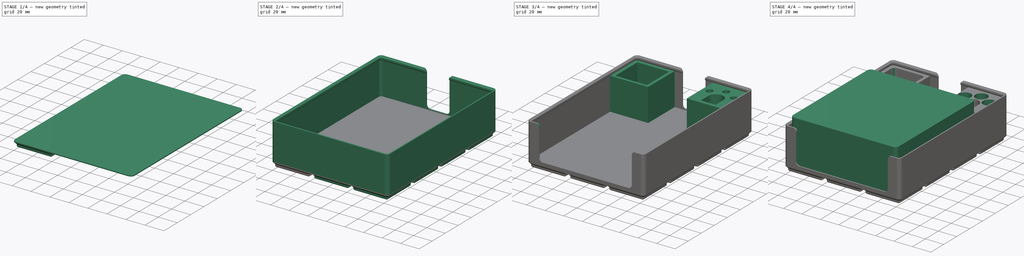
[diagram: build sequence overview — one tinted view per stage of 4, left to right]
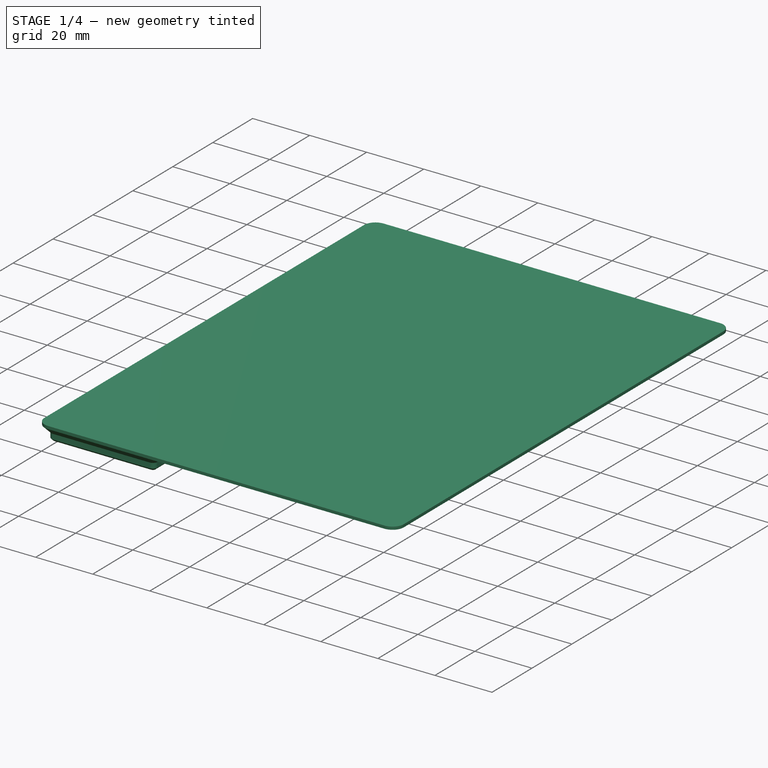
[diagram: stage 1 of 4 — iso view after this stage's code; geometry added in this stage tinted green]
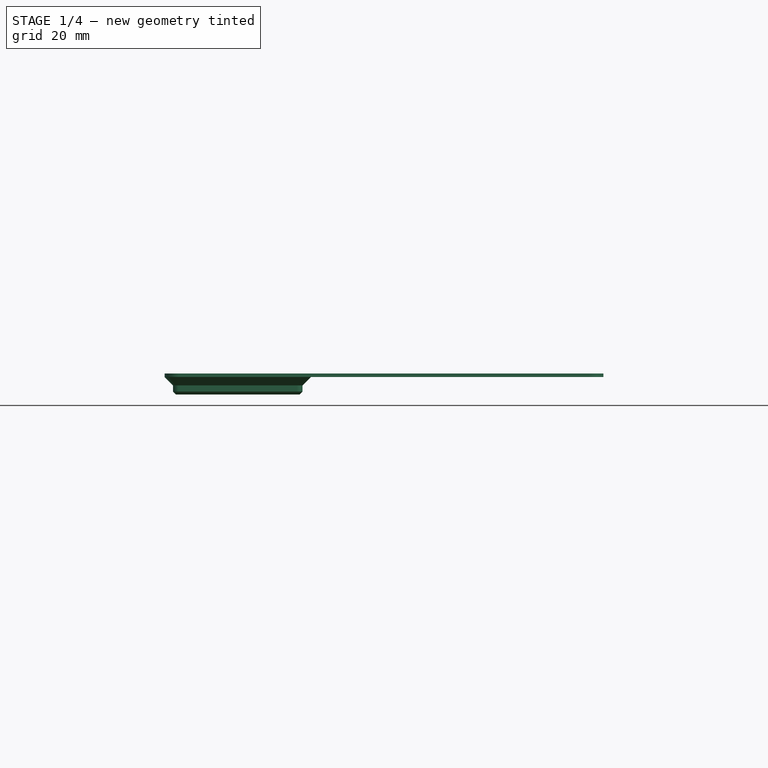
[diagram: stage 1 of 4 — front view after this stage's code; geometry added in this stage tinted green]
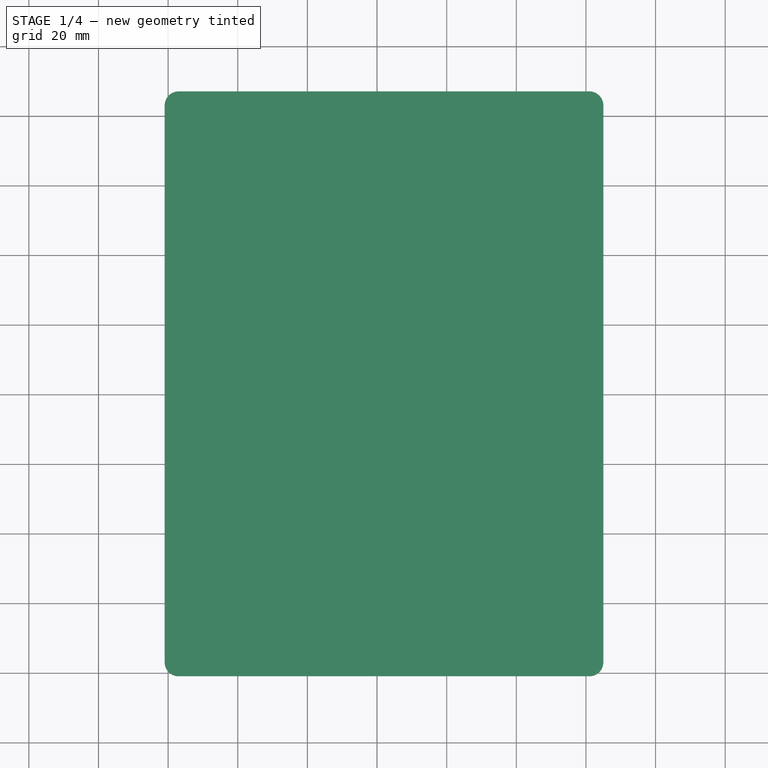
[diagram: stage 1 of 4 — top view after this stage's code; geometry added in this stage tinted green]
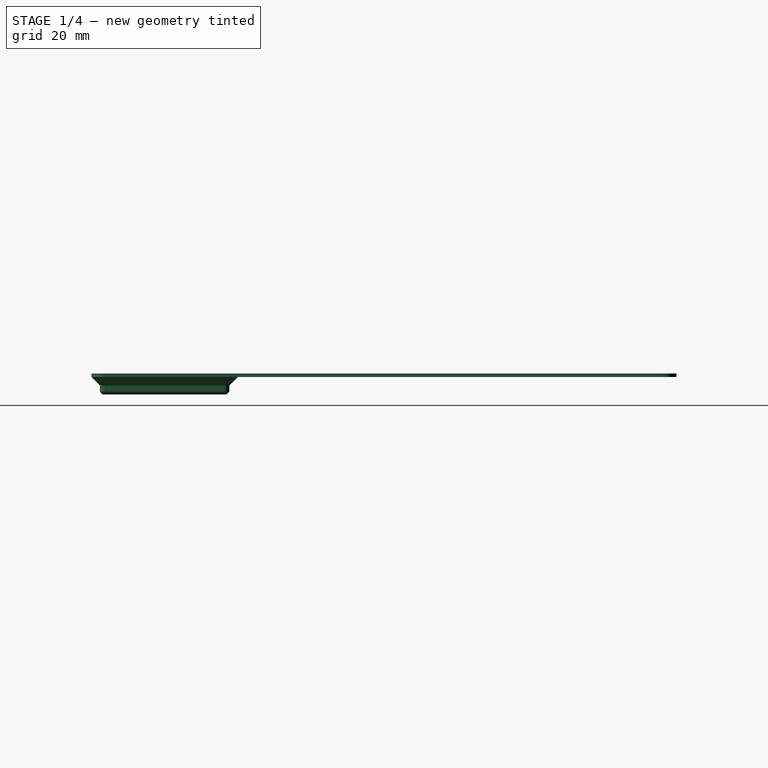
[diagram: stage 1 of 4 — right view after this stage's code; geometry added in this stage tinted green]
FCSTD DOCUMENT  (FreeCAD 0.19R24267 +148 (Git))
Label: Gridfinity Pine Power Base
License: All rights reserved
LicenseURL: http://en.wikipedia.org/wiki/All_rights_reserved
objects: Sketcher::SketchObject×12, PartDesign::Pocket×5, PartDesign::Pad×4, PartDesign::LinearPattern×2, PartDesign::Body×2, PartDesign::Fillet×2, Spreadsheet::Sheet×1, PartDesign::SubtractivePipe×1, PartDesign::MultiTransform×1, PartDesign::AdditivePipe×1, App::Part×1
note: 43 computed .brp shape members not serialized (recipe doc carries the construction recipe); baked Part::Feature solids carry a one-line shape summary decoded from their .brp

FEATURE [Spreadsheet::Sheet] Spreadsheet001  label="Params"
  cells = A1=slotsWide; B1(slotsWide)=3; D1=pinePowerWidth; E1(pinePowerWidth)==115mm; G1=Unit Width; H1(unitWidth)==slotsWide * slotDimension; A2=slotsHigh; B2(slotsHigh)=6; D2=pinePowerDepth; E2(pinePowerDepth)==123mm; G2=margin; H2==unitWidth - pinePowerWidth; A3=SlotsDeep; B3(SlotsDeep)=4; D3=pinePowerCornerRadius; E3(pinePowerCornerRadius)==4mm; A4=slotHeightDimension; B4(slotHeightDimension)==7mm; D4=pinePowerHeight; E4(pinePowerHeight)==48mm; A5=slotDimension; B5(slotDimension)==42mm; D5=powerCutout; E5(powerCutout)==25mm; A6=nestingDepth; B6(nestingDepth)==5mm; D6=pinePower_frontCutout; E6(pinePower_frontCutout_width)==100mm; A7=nestingRimWidth; B7(nestingRimWidth)==2.4mm; D7=pinePower_frontCutout_height; E7(pinePower_frontCutout_height)==36.7mm; A8=nestingClearance; B8(nestingClearance)==0.25mm; A9=cornerFillet; B9(cornerFillet)==4mm; A10=wallThickkness; B10(wallThickkness)==1.2mm; A11=nestingBottomFillet; B11(nestingBottomFillet)==0.8mm; A12=compartments; B12(compartments)=4; A13=compartmentOffset; B13(compartmentOffset)==(slotsWide * slotDimension - wallThickkness) / compartments; A14=compartmentInnerWidth; B14(compartmentInnerWidth)==compartmentOffset - wallThickkness; A15=compartmentSideFillet; B15(compartmentSideFillet)==1mm; A16=compartmentFrontFillet; B16(compartmentFrontFillet)==5mm; A17=topEdgeFillet; B17(topEdgeFillet)==0.6mm; A18=nestingFilletAngle; B18(nestingFilletAngle)=45; A19=nestingInnerDepth; B19(nestingInnerDepth)==1.8mm; A20=magnetRadius; B20(magnetRadius)==3mm; A21=magnetDepth; B21(magnetDepth)==2mm; A22=screwDiameter; B22(screwDiameter)==3mm; A23=deckHeight; B23(deckHeight)==1mm
FEATURE [Sketcher::SketchObject] Sketch007  label="Single Unit Main Body Outline"
  FullyConstrained = true
  MapMode = 5
  Support = -> [XY_Plane]
  expr: Constraints[28] = <<Params>>.cornerFillet
  expr: Constraints[32] = <<Params>>.slotDimension
  expr: Constraints[4] = <<Params>>.slotDimension
  sketch-geometry (15):
    g0: LineSegment StartX=-17 StartY=21 StartZ=0 EndX=17 EndY=21 EndZ=0
    g1: LineSegment StartX=21 StartY=17 StartZ=0 EndX=21 EndY=-17 EndZ=0
    g2: LineSegment StartX=17 StartY=-21 StartZ=0 EndX=-17 EndY=-21 EndZ=0
    g3: LineSegment StartX=-21 StartY=-17 StartZ=0 EndX=-21 EndY=17 EndZ=0
    g4: LineSegment StartX=-21 StartY=21 StartZ=0 EndX=21 EndY=-21 EndZ=0
    g5: LineSegment StartX=-21 StartY=-21 StartZ=0 EndX=21 EndY=21 EndZ=0
    g6: GeomPoint X=0 Y=0 Z=0
    g7: ArcOfCircle CenterX=-17 CenterY=17 CenterZ=0 NormalX=0 NormalY=0 NormalZ=1 AngleXU=0 Radius=4 StartAngle=1.5708 EndAngle=3.14159
    g8: GeomPoint X=-21 Y=21 Z=0
    g9: ArcOfCircle CenterX=17 CenterY=17 CenterZ=0 NormalX=0 NormalY=0 NormalZ=1 AngleXU=0 Radius=4 StartAngle=0 EndAngle=1.5708
    g10: GeomPoint X=21 Y=21 Z=0
    g11: ArcOfCircle CenterX=17 CenterY=-17 CenterZ=0 NormalX=0 NormalY=0 NormalZ=1 AngleXU=0 Radius=4 StartAngle=4.71239 EndAngle=6.28319
    g12: GeomPoint X=21 Y=-21 Z=0
    g13: ArcOfCircle CenterX=-17 CenterY=-17 CenterZ=0 NormalX=0 NormalY=0 NormalZ=1 AngleXU=0 Radius=4 StartAngle=3.14159 EndAngle=4.71239
    g14: GeomPoint X=-21 Y=-21 Z=0
  constraints (33):
    c: Horizontal(g0)
    c: Horizontal(g2)
    c: Vertical(g1)
    c: Vertical(g3)
    c: DistanceX(g8,g10) = 42
    c: Coincident(g4,g8)
    c: Coincident(g4,g12)
    c: PointOnObject(g6,g5)
    c: PointOnObject(g6,g4)
    c: Coincident(g5,g14)
    c: Coincident(g5,g10)
    c: Coincident(g6,g-1)
    c: PointOnObject(g8,g3)
    c: PointOnObject(g8,g0)
    c: Tangent(g3,g7) = 1.5708
    c: Tangent(g0,g7) = 1.5708
    c: PointOnObject(g10,g0)
    c: PointOnObject(g10,g1)
    c: Tangent(g0,g9) = 1.5708
    c: Tangent(g1,g9) = 1.5708
    c: PointOnObject(g12,g1)
    c: PointOnObject(g12,g2)
    c: Tangent(g1,g11) = 1.5708
    c: Tangent(g2,g11) = 1.5708
    c: PointOnObject(g14,g2)
    c: PointOnObject(g14,g3)
    c: Tangent(g2,g13) = 1.5708
    c: Tangent(g3,g13) = 1.5708
    c: Radius(g13) = 4
    c: Equal(g13,g7)
    c: Equal(g7,g9)
    c: Equal(g9,g11)
    c: DistanceY(g5,g4) = 42
FEATURE [Sketcher::SketchObject] Sketch009  label="Base Profile"
  FullyConstrained = true
  MapMode = 5
  Placement = pos=(0,0,0) rot=(1,0,0;1.5708rad)
  Support = -> [XZ_Plane]
  expr: Constraints[9] = <<Params>>.nestingDepth
  expr: Constraints[17] = <<Params>>.nestingFilletAngle
  expr: Constraints[10] = <<Params>>.nestingFilletAngle
  expr: Constraints[13] = <<Params>>.slotDimension / 2
  expr: Constraints[18] = <<Params>>.nestingInnerDepth
  expr: Constraints[19] = <<Params>>.nestingRimWidth
  sketch-geometry (11):
    g0: LineSegment StartX=-21 StartY=0 StartZ=0 EndX=-21 EndY=5 EndZ=0
    g1: LineSegment StartX=-21 StartY=5 StartZ=0 EndX=-18.6 EndY=2.6 EndZ=0
    g2: LineSegment StartX=-18.6 StartY=2.6 StartZ=0 EndX=-18.6 EndY=0.8 EndZ=0
    g3: LineSegment StartX=-18.6 StartY=0.8 StartZ=0 EndX=-17.8 EndY=0 EndZ=0
    g4: LineSegment StartX=-17.8 StartY=0 StartZ=0 EndX=-21 EndY=0 EndZ=0
    g5: LineSegment StartX=-21 StartY=0 StartZ=0 EndX=0 EndY=0 EndZ=0
    g6: LineSegment StartX=-18.6 StartY=0.8 StartZ=0 EndX=-18.6 EndY=0 EndZ=0
    g7: LineSegment StartX=-21 StartY=5 StartZ=0 EndX=-26 EndY=5 EndZ=0
    g8: LineSegment StartX=-26 StartY=5 StartZ=0 EndX=-26 EndY=0 EndZ=0
    g9: LineSegment StartX=-26 StartY=0 StartZ=0 EndX=-21 EndY=0 EndZ=0
    g10: LineSegment StartX=-21 StartY=0 StartZ=0 EndX=-21 EndY=5 EndZ=0
  constraints (31):
    c: PointOnObject(g0,g-1)
    c: Vertical(g0)
    c: Coincident(g0,g1)
    c: Coincident(g1,g2)
    c: Vertical(g2)
    c: Coincident(g2,g3)
    c: Coincident(g3,g4)
    c: Coincident(g4,g0)
    c: Horizontal(g4)
    c: DistanceY(g0,g0) = 5
    c: Angle(g0,g1) = 0.785398
    c: Coincident(g5,g0)
    c: Coincident(g5,g-1)
    c: DistanceX(g5,g5) = 21
    c: Coincident(g6,g2)
    c: PointOnObject(g6,g4)
    c: Vertical(g6)
    c: Angle(g6,g3) = 0.785398
    c: DistanceY(g2,g2) = 1.8
    c: DistanceX(g0,g6) = 2.4
    c: Coincident(g7,g8)
    c: Coincident(g8,g9)
    c: Coincident(g9,g10)
    c: Coincident(g10,g7)
    c: Horizontal(g7)
    c: Horizontal(g9)
    c: Vertical(g8)
    c: Vertical(g10)
    c: Coincident(g7,g0)
    c: PointOnObject(g8,g-1)
    c: Equal(g8,g9)
FEATURE [Sketcher::SketchObject] Sketch008  label="Single Unit Base Step One"
  FullyConstrained = true
  MapMode = 5
  Support = -> [XY_Plane]
  expr: Constraints[32] = <<Params>>.slotDimension - 2 * <<Params>>.nestingRimWidth
  expr: Constraints[31] = <<Params>>.cornerFillet
  expr: Constraints[11] = <<Params>>.slotDimension - 2 * <<Params>>.nestingRimWidth
  sketch-geometry (15):
    g0: LineSegment StartX=-14.6 StartY=18.6 StartZ=0 EndX=14.6 EndY=18.6 EndZ=0
    g1: LineSegment StartX=18.6 StartY=14.6 StartZ=0 EndX=18.6 EndY=-14.6 EndZ=0
    g2: LineSegment StartX=14.6 StartY=-18.6 StartZ=0 EndX=-14.6 EndY=-18.6 EndZ=0
    g3: LineSegment StartX=-18.6 StartY=-14.6 StartZ=0 EndX=-18.6 EndY=14.6 EndZ=0
    g4: LineSegment StartX=-18.6 StartY=18.6 StartZ=0 EndX=18.6 EndY=-18.6 EndZ=0
    g5: LineSegment StartX=18.6 StartY=18.6 StartZ=0 EndX=-18.6 EndY=-18.6 EndZ=0
    g6: GeomPoint X=0 Y=0 Z=0
    g7: ArcOfCircle CenterX=-14.6 CenterY=14.6 CenterZ=0 NormalX=0 NormalY=0 NormalZ=1 AngleXU=0 Radius=4 StartAngle=1.5708 EndAngle=3.14159
    g8: GeomPoint X=-18.6 Y=18.6 Z=0
    g9: ArcOfCircle CenterX=14.6 CenterY=14.6 CenterZ=0 NormalX=0 NormalY=0 NormalZ=1 AngleXU=0 Radius=4 StartAngle=0 EndAngle=1.5708
    g10: GeomPoint X=18.6 Y=18.6 Z=0
    g11: ArcOfCircle CenterX=14.6 CenterY=-14.6 CenterZ=0 NormalX=0 NormalY=0 NormalZ=1 AngleXU=0 Radius=4 StartAngle=4.71239 EndAngle=6.28319
    g12: GeomPoint X=18.6 Y=-18.6 Z=0
    g13: ArcOfCircle CenterX=-14.6 CenterY=-14.6 CenterZ=0 NormalX=0 NormalY=0 NormalZ=1 AngleXU=0 Radius=4 StartAngle=3.14159 EndAngle=4.71239
    g14: GeomPoint X=-18.6 Y=-18.6 Z=0
  constraints (33):
    c: Horizontal(g0)
    c: Horizontal(g2)
    c: Vertical(g1)
    c: Vertical(g3)
    c: Coincident(g4,g8)
    c: Coincident(g4,g12)
    c: Coincident(g5,g10)
    c: Coincident(g5,g14)
    c: PointOnObject(g6,g5)
    c: PointOnObject(g6,g4)
    c: Coincident(g6,g-1)
    c: DistanceX(g8,g10) = 37.2
    c: PointOnObject(g8,g3)
    c: PointOnObject(g8,g0)
    c: Tangent(g3,g7) = 1.5708
    c: Tangent(g0,g7) = 1.5708
    c: PointOnObject(g10,g0)
    c: PointOnObject(g10,g1)
    c: Tangent(g0,g9) = 1.5708
    c: Tangent(g1,g9) = 1.5708
    c: PointOnObject(g12,g1)
    c: PointOnObject(g12,g2)
    c: Tangent(g1,g11) = 1.5708
    c: Tangent(g2,g11) = 1.5708
    c: PointOnObject(g14,g2)
    c: PointOnObject(g14,g3)
    c: Tangent(g2,g13) = 1.5708
    c: Tangent(g3,g13) = 1.5708
    c: Equal(g7,g9)
    c: Equal(g9,g11)
    c: Equal(g11,g13)
    c: Radius(g7) = 4
    c: DistanceY(g5,g4) = 37.2
FEATURE [PartDesign::Pad] Pad
  Direction = (1,1,1)
  Length = 5
  Length2 = 100
  Profile = -> Sketch007
  Type = 0
  expr: Length = <<Params>>.slotHeightDimension - 2mm
FEATURE [Sketcher::SketchObject] Sketch  label="UpperBodyPlate_Sketch"
  AttachmentOffset = pos=(0,0,5) rot=(0,0,1;0rad)
  FullyConstrained = true
  MapMode = 5
  Placement = pos=(0,0,5) rot=(0,0,1;0rad)
  Support = -> [XY_Plane]
  expr: Constraints[4] = <<Params>>.slotDimension / 2
  expr: Constraints[5] = <<Params>>.slotDimension / 2
  expr: Constraints[6] = <<Params>>.slotDimension * <<Params>>.SlotsDeep
  expr: Constraints[7] = <<Params>>.slotDimension * <<Params>>.slotsWide
  expr: .AttachmentOffset.Base.z = <<Params>>.nestingDepth
  expr: Constraints[12] = <<Params>>.cornerFillet
  sketch-geometry (12):
    g0: LineSegment StartX=-17 StartY=147 StartZ=0 EndX=101 EndY=147 EndZ=0
    g1: LineSegment StartX=105 StartY=143 StartZ=0 EndX=105 EndY=-17 EndZ=0
    g2: LineSegment StartX=101 StartY=-21 StartZ=0 EndX=-17 EndY=-21 EndZ=0
    g3: LineSegment StartX=-21 StartY=-17 StartZ=0 EndX=-21 EndY=143 EndZ=0
    g4: ArcOfCircle CenterX=-17 CenterY=-17 CenterZ=0 NormalX=0 NormalY=0 NormalZ=1 AngleXU=0 Radius=4 StartAngle=3.14159 EndAngle=4.71239
    g5: GeomPoint X=-21 Y=-21 Z=0
    g6: ArcOfCircle CenterX=-17 CenterY=143 CenterZ=0 NormalX=0 NormalY=0 NormalZ=1 AngleXU=0 Radius=4 StartAngle=1.5708 EndAngle=3.14159
    g7: GeomPoint X=-21 Y=147 Z=0
    g8: ArcOfCircle CenterX=101 CenterY=143 CenterZ=0 NormalX=0 NormalY=0 NormalZ=1 AngleXU=0 Radius=4 StartAngle=-4e-14 EndAngle=1.5708
    g9: GeomPoint X=105 Y=147 Z=0
    g10: ArcOfCircle CenterX=101 CenterY=-17 CenterZ=0 NormalX=0 NormalY=0 NormalZ=1 AngleXU=0 Radius=4 StartAngle=4.71239 EndAngle=6.28319
    g11: GeomPoint X=105 Y=-21 Z=0
  constraints (28):
    c: Horizontal(g0)
    c: Horizontal(g2)
    c: Vertical(g1)
    c: Vertical(g3)
    c: DistanceX(g5,g-1) = 21
    c: DistanceY(g5,g-1) = 21
    c: DistanceY(g5,g7) = 168
    c: DistanceX(g5,g11) = 126
    c: PointOnObject(g5,g2)
    c: PointOnObject(g5,g3)
    c: Tangent(g2,g4) = 1.5708
    c: Tangent(g3,g4) = 1.5708
    c: Radius(g4) = 4
    c: PointOnObject(g7,g0)
    c: PointOnObject(g7,g3)
    c: Tangent(g0,g6) = 1.5708
    c: Tangent(g3,g6) = 1.5708
    c: PointOnObject(g9,g0)
    c: PointOnObject(g9,g1)
    c: Tangent(g0,g8) = 1.5708
    c: Tangent(g1,g8) = 1.5708
    c: PointOnObject(g11,g1)
    c: PointOnObject(g11,g2)
    c: Tangent(g1,g10) = 1.5708
    c: Tangent(g2,g10) = 1.5708
    c: Equal(g4,g6)
    c: Equal(g6,g8)
    c: Equal(g8,g10)
FEATURE [PartDesign::Pad] Pad001  label="UpperBodyPlate"
  BaseFeature = -> Pad
  Direction = (1,1,1)
  Length = 1
  Length2 = 100
  Profile = -> Sketch
  Type = 0
  expr: Length = <<Params>>.deckHeight
FEATURE [PartDesign::SubtractivePipe] SubtractivePipe
  AuxilleryCurvelinear = true
  AuxillerySpineTangent = false
  BaseFeature = -> Pad001
  Binormal = (0,0,0)
  Mode = 0
  Profile = -> Sketch009
  Spine = -> Sketch007
  SpineTangent = false
  Transformation = 0
  Transition = 0
FEATURE [PartDesign::LinearPattern] LinearPattern
  Direction = -> X_Axis
  Length = 84
  Occurrences = 3
  expr: Length = <<Params>>.slotDimension * (<<Params>>.slotsWide - 1)
  expr: Occurrences = <<Params>>.slotsWide
FEATURE [PartDesign::LinearPattern] LinearPattern001
  Direction = -> Y_Axis
  Length = 126
  Occurrences = 4
  expr: Length = <<Params>>.slotDimension * (<<Params>>.SlotsDeep - 1)
  expr: Occurrences = <<Params>>.SlotsDeep
FEATURE [Sketcher::SketchObject] Sketch010
  FullyConstrained = true
  MapMode = 5
  Support = -> [XY_Plane]
  expr: Constraints[8] = <<Params>>.slotDimension / 2
  expr: Constraints[9] = <<Params>>.slotDimension / 2
  expr: Constraints[14] = <<Params>>.nestingRimWidth + <<Params>>.nestingBottomFillet + <<Params>>.magnetRadius / 2 + 3mm
  expr: Constraints[11] = <<Params>>.slotDimension
  expr: Constraints[12] = <<Params>>.magnetRadius
  expr: Constraints[13] = <<Params>>.nestingRimWidth + <<Params>>.nestingBottomFillet + <<Params>>.magnetRadius / 2 + 3mm
  sketch-geometry (12):
    g0: LineSegment StartX=-21 StartY=21 StartZ=0 EndX=21 EndY=21 EndZ=0
    g1: LineSegment StartX=21 StartY=21 StartZ=0 EndX=21 EndY=-21 EndZ=0
    g2: LineSegment StartX=21 StartY=-21 StartZ=0 EndX=-21 EndY=-21 EndZ=0
    g3: LineSegment StartX=-21 StartY=-21 StartZ=0 EndX=-21 EndY=21 EndZ=0
    g4: Circle CenterX=-13.3 CenterY=13.3 CenterZ=0 NormalX=0 NormalY=0 NormalZ=1 AngleXU=0 Radius=3
    g5: Circle CenterX=13.3 CenterY=13.3 CenterZ=0 NormalX=0 NormalY=0 NormalZ=1 AngleXU=0 Radius=3
    g6: Circle CenterX=13.3 CenterY=-13.3 CenterZ=0 NormalX=0 NormalY=0 NormalZ=1 AngleXU=0 Radius=3
    g7: Circle CenterX=-13.3 CenterY=-13.3 CenterZ=0 NormalX=0 NormalY=0 NormalZ=1 AngleXU=0 Radius=3
    g8: LineSegment StartX=-21 StartY=21 StartZ=0 EndX=-13.3 EndY=13.3 EndZ=0
    g9: LineSegment StartX=13.3 StartY=13.3 StartZ=0 EndX=21 EndY=21 EndZ=0
    g10: LineSegment StartX=-13.3 StartY=-13.3 StartZ=0 EndX=-21 EndY=-21 EndZ=0
    g11: LineSegment StartX=13.3 StartY=-13.3 StartZ=0 EndX=21 EndY=-21 EndZ=0
  constraints (32):
    c: Coincident(g0,g1)
    c: Coincident(g1,g2)
    c: Coincident(g2,g3)
    c: Coincident(g3,g0)
    c: Horizontal(g0)
    c: Horizontal(g2)
    c: Vertical(g1)
    c: Vertical(g3)
    c: DistanceX(g2,g-1) = 21
    c: DistanceY(g2,g-1) = 21
    c: Equal(g0,g1)
    c: DistanceX(g0,g0) = 42
    c: Radius(g4) = 3
    c: DistanceX(g0,g4) = 7.7
    c: DistanceY(g4,g0) = 7.7
    c: Coincident(g8,g0)
    c: Coincident(g8,g4)
    c: Coincident(g9,g5)
    c: Coincident(g9,g0)
    c: Coincident(g10,g7)
    c: Coincident(g10,g2)
    c: Coincident(g11,g6)
    c: Coincident(g11,g1)
    c: Angle(g0,g9) = 0.785398
    c: Angle(g1,g11) = 0.785398
    c: Angle(g10,g3) = 0.785398
    c: Equal(g8,g9)
    c: Equal(g9,g11)
    c: Equal(g11,g10)
    c: Equal(g4,g5)
    c: Equal(g5,g6)
    c: Equal(g6,g7)
FEATURE [PartDesign::Pocket] Pocket
  BaseFeature = -> SubtractivePipe
  Length = 2
  Length2 = 100
  Profile = -> Sketch010
  Reversed = true
  Type = 0
  expr: Length = <<Params>>.magnetDepth
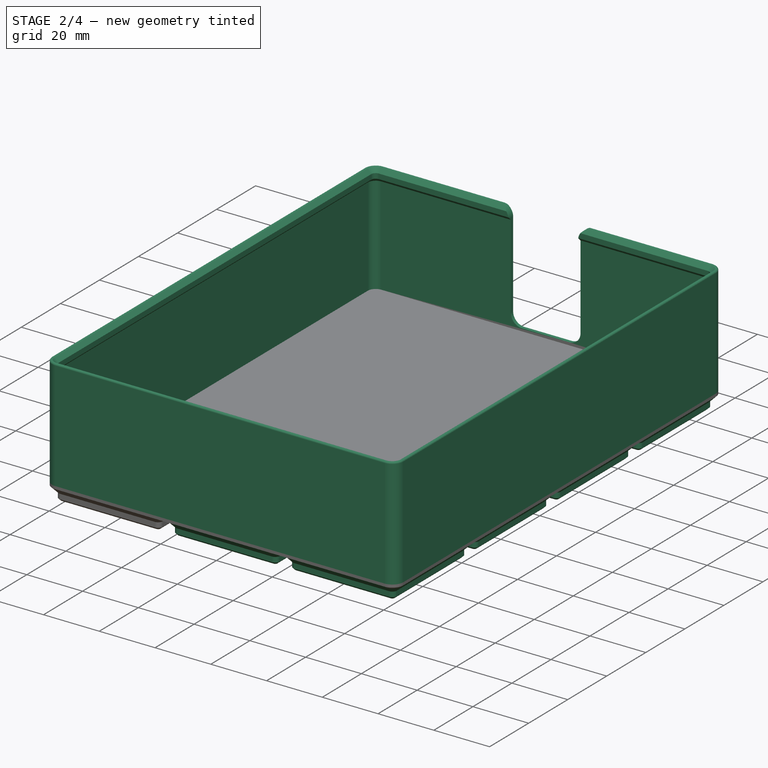
[diagram: stage 2 of 4 — iso view after this stage's code; geometry added in this stage tinted green]
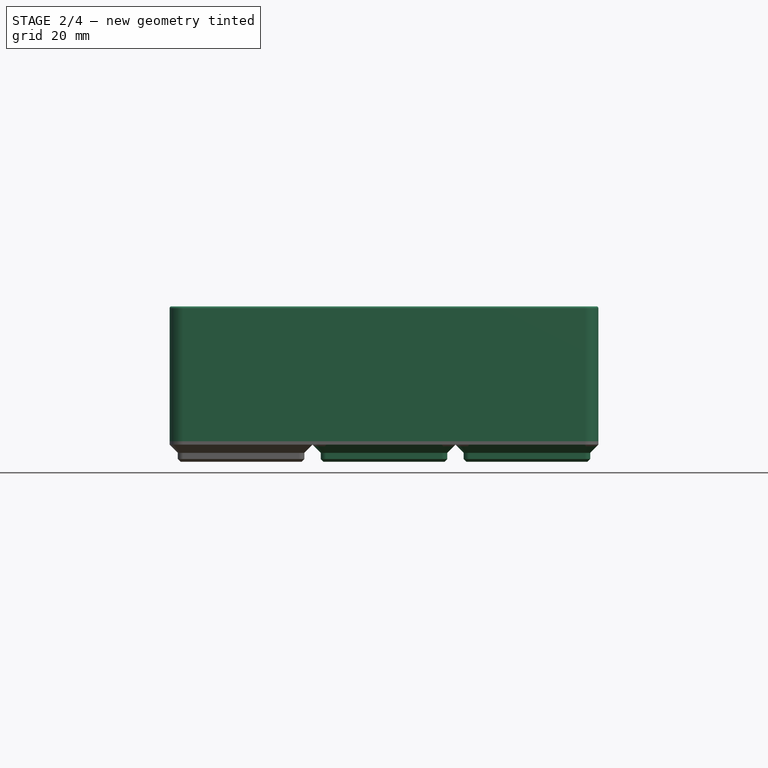
[diagram: stage 2 of 4 — front view after this stage's code; geometry added in this stage tinted green]
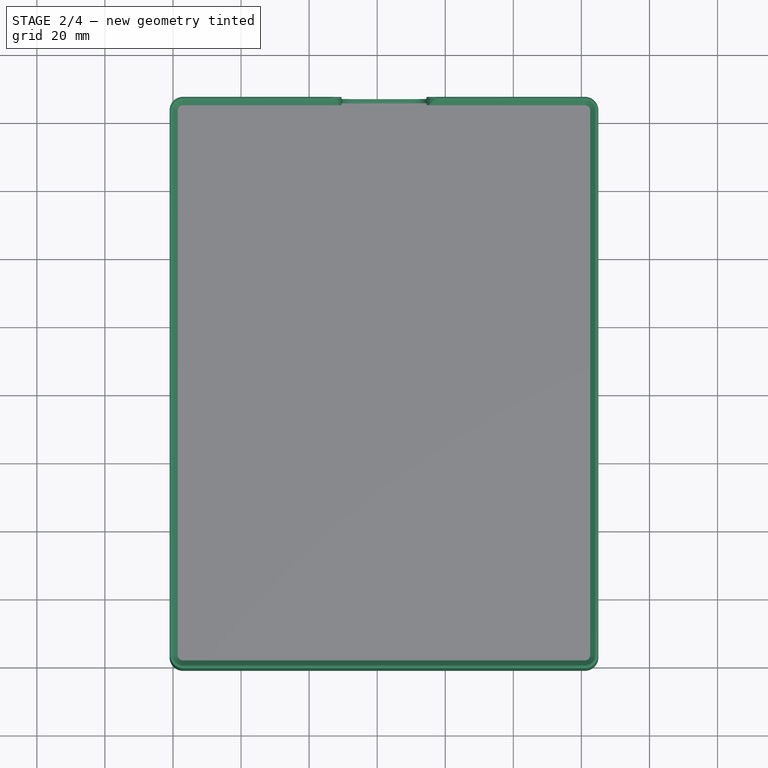
[diagram: stage 2 of 4 — top view after this stage's code; geometry added in this stage tinted green]
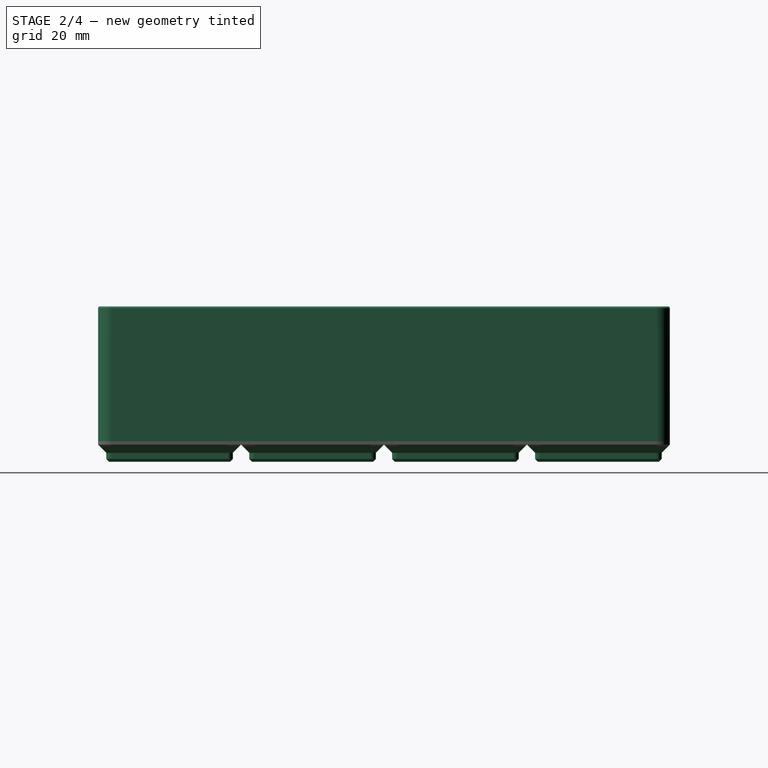
[diagram: stage 2 of 4 — right view after this stage's code; geometry added in this stage tinted green]
FEATURE [PartDesign::MultiTransform] MultiTransform
  BaseFeature = -> Pocket
  Originals = -> [Pad,SubtractivePipe,Pocket]
  Transformations = -> [LinearPattern,LinearPattern001]
FEATURE [PartDesign::Body] Body001  label="PinePower Body"
  Group = -> [Sketch016,Pad004]
  Origin = -> Origin004
  Tip = -> Pad004
FEATURE [Sketcher::SketchObject] Sketch017  label="Wall Profile"
  FullyConstrained = true
  MapMode = 5
  Placement = pos=(0,0,0) rot=(1,0,0;1.5708rad)
  Support = -> [XZ_Plane]
  expr: Constraints[10] = <<Params>>.wallThickkness
  expr: Constraints[11] = <<Params>>.nestingRimWidth
  expr: Constraints[12] = <<Params>>.nestingInnerDepth
  expr: Constraints[15] = <<Params>>.nestingDepth + <<Params>>.deckHeight
  expr: Constraints[20] = <<Params>>.topEdgeFillet
  expr: Constraints[13] = <<Params>>.slotsHigh * <<Params>>.slotHeightDimension - 1.5mm
  expr: Constraints[14] = <<Params>>.slotDimension / 2
  sketch-geometry (8):
    g0: LineSegment StartX=-21 StartY=45.0515 StartZ=0 EndX=-21 EndY=6 EndZ=0
    g1: LineSegment StartX=-19.9757 StartY=45.4757 StartZ=0 EndX=-18.6 EndY=44.1 EndZ=0
    g2: LineSegment StartX=-18.6 StartY=44.1 StartZ=0 EndX=-18.6 EndY=42.3 EndZ=0
    g3: LineSegment StartX=-18.6 StartY=42.3 StartZ=0 EndX=-19.8 EndY=41.1 EndZ=0
    g4: LineSegment StartX=-19.8 StartY=41.1 StartZ=0 EndX=-19.8 EndY=6 EndZ=0
    g5: LineSegment StartX=-19.8 StartY=6 StartZ=0 EndX=-21 EndY=6 EndZ=0
    g6: ArcOfCircle CenterX=-20.4 CenterY=45.0515 CenterZ=0 NormalX=0 NormalY=0 NormalZ=1 AngleXU=0 Radius=0.6 StartAngle=0.785398 EndAngle=3.14159
    g7: GeomPoint X=-21 Y=46.5 Z=0
  constraints (22):
    c: Vertical(g0)
    c: Coincident(g2,g1)
    c: Vertical(g2)
    c: Coincident(g3,g2)
    c: Coincident(g4,g3)
    c: Vertical(g4)
    c: Coincident(g5,g4)
    c: Coincident(g5,g0)
    c: Horizontal(g5)
    c: Angle(g2,g3) = 2.35619
    c: DistanceX(g5,g5) = 1.2
    c: DistanceX(g7,g1) = 2.4
    c: DistanceY(g2,g2) = 1.8
    c: DistanceY(g0,g7) = 40.5
    c: DistanceX(g0,g-1) = 21
    c: DistanceY(g-1,g0) = 6
    c: PointOnObject(g7,g0)
    c: PointOnObject(g7,g1)
    c: Tangent(g0,g6) = -1.5708
    c: Tangent(g1,g6) = 1.5708
    c: Radius(g6) = 0.6
    c: Angle(g0,g1) = 0.785398
FEATURE [PartDesign::AdditivePipe] AdditivePipe
  AuxilleryCurvelinear = true
  AuxillerySpineTangent = false
  BaseFeature = -> MultiTransform
  Binormal = (0,0,0)
  Mode = 0
  Profile = -> Sketch017
  Sections = -> [MultiTransform]
  Spine = -> Sketch
  SpineTangent = false
  Transformation = 0
  Transition = 0
FEATURE [Sketcher::SketchObject] Sketch018
  FullyConstrained = true
  MapMode = 5
  Placement = pos=(0,147,0) rot=(0,0.707107,0.707107;3.14159rad)
  Support = -> [AdditivePipe]
  expr: Constraints[6] = <<Params>>.nestingDepth + <<Params>>.deckHeight + 1mm
  expr: Constraints[7] = <<Params>>.slotHeightDimension * <<Params>>.slotsHigh - 3.3mm
  expr: Constraints[8] = <<Params>>.powerCutout
  expr: Constraints[9] = <<Params>>.slotDimension * <<Params>>.slotsWide / 2 - (<<Params>>.powerCutout + <<Params>>.slotDimension) / 2
  sketch-geometry (16):
    g0: LineSegment StartX=-54.5 StartY=45.7 StartZ=0 EndX=-29.5 EndY=45.7 EndZ=0
    g1: LineSegment StartX=-29.5 StartY=41.7 StartZ=0 EndX=-29.5 EndY=11 EndZ=0
    g2: LineSegment StartX=-33.5 StartY=7 StartZ=0 EndX=-50.5 EndY=7 EndZ=0
    g3: LineSegment StartX=-54.5 StartY=11 StartZ=0 EndX=-54.5 EndY=41.7 EndZ=0
    g4: LineSegment StartX=-58.5 StartY=45.7 StartZ=0 EndX=-59.5 EndY=45.7 EndZ=0
    g5: LineSegment StartX=-25.5 StartY=45.7 StartZ=0 EndX=0 EndY=45.7 EndZ=0
    g6: ArcOfCircle CenterX=-58.5 CenterY=41.7 CenterZ=0 NormalX=0 NormalY=0 NormalZ=1 AngleXU=0 Radius=4 StartAngle=4e-16 EndAngle=1.5708
    g7: GeomPoint X=-54.5 Y=45.7 Z=0
    g8: ArcOfCircle CenterX=-25.5 CenterY=41.7 CenterZ=0 NormalX=0 NormalY=0 NormalZ=1 AngleXU=0 Radius=4 StartAngle=1.5708 EndAngle=3.14159
    g9: GeomPoint X=-29.5 Y=45.7 Z=0
    g10: ArcOfCircle CenterX=-50.5 CenterY=11 CenterZ=0 NormalX=0 NormalY=0 NormalZ=1 AngleXU=0 Radius=4 StartAngle=3.14159 EndAngle=4.71239
    g11: GeomPoint X=-54.5 Y=7 Z=0
    g12: ArcOfCircle CenterX=-33.5 CenterY=11 CenterZ=0 NormalX=0 NormalY=0 NormalZ=1 AngleXU=0 Radius=4 StartAngle=4.71239 EndAngle=6.28319
    g13: GeomPoint X=-29.5 Y=7 Z=0
    g14: LineSegment StartX=-58.5 StartY=45.7 StartZ=0 EndX=-54.5 EndY=45.7 EndZ=0
    g15: LineSegment StartX=-29.5 StartY=45.7 StartZ=0 EndX=-25.5 EndY=45.7 EndZ=0
  constraints (38):
    c: Coincident(g0,g9)
    c: Coincident(g7,g0)
    c: Horizontal(g0)
    c: Horizontal(g2)
    c: Vertical(g1)
    c: Vertical(g3)
    c: DistanceY(g-1,g13) = 7
    c: DistanceY(g13,g9) = 38.7
    c: DistanceX(g0,g0) = 25
    c: DistanceX(g13,g-1) = 29.5
    c: Horizontal(g4)
    c: Horizontal(g5)
    c: DistanceX(g4,g7) = 5
    c: PointOnObject(g7,g4)
    c: PointOnObject(g7,g3)
    c: Tangent(g4,g6) = -1.5708
    c: Tangent(g3,g6) = -1.5708
    c: PointOnObject(g9,g1)
    c: PointOnObject(g9,g5)
    c: Tangent(g1,g8) = -1.5708
    c: Tangent(g5,g8) = 1.5708
    c: Equal(g6,g8)
    c: Radius(g6) = 4
    c: PointOnObject(g11,g3)
    c: PointOnObject(g11,g2)
    c: Tangent(g3,g10) = 1.5708
    c: Tangent(g2,g10) = 1.5708
    c: PointOnObject(g13,g2)
    c: PointOnObject(g13,g1)
    c: Tangent(g2,g12) = 1.5708
    c: Tangent(g1,g12) = 1.5708
    c: Equal(g12,g10)
    c: Equal(g10,g6)
    c: Coincident(g14,g4)
    c: Coincident(g14,g0)
    c: Coincident(g15,g0)
    c: Coincident(g15,g5)
    c: Vertical(g5,g-1)
FEATURE [PartDesign::Pocket] Pocket001  label="Rear Cutout"
  BaseFeature = -> AdditivePipe
  Length = 2.4
  Length2 = 100
  Profile = -> Sketch018
  Type = 0
  expr: Length = <<Params>>.nestingRimWidth
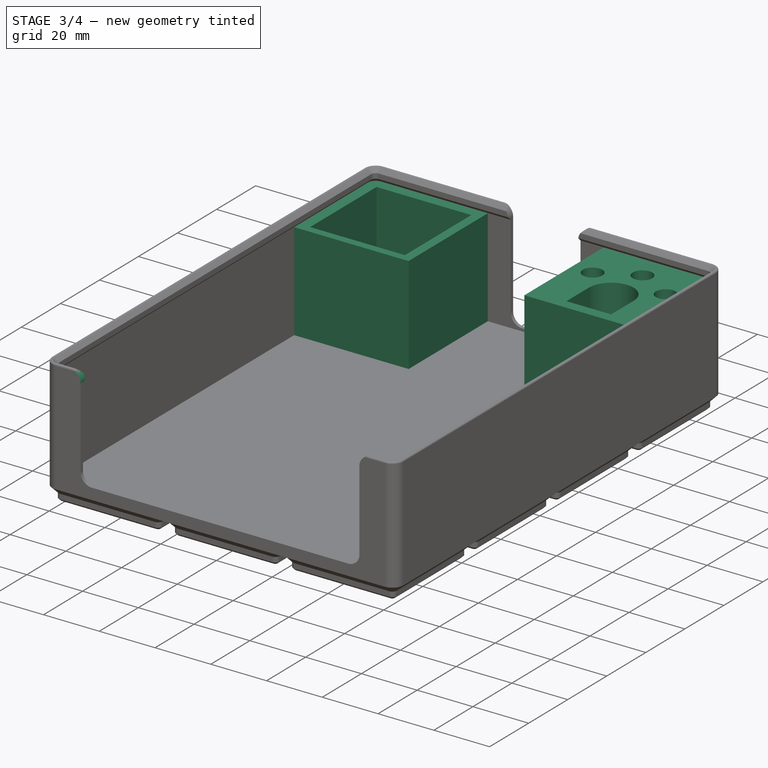
[diagram: stage 3 of 4 — iso view after this stage's code; geometry added in this stage tinted green]
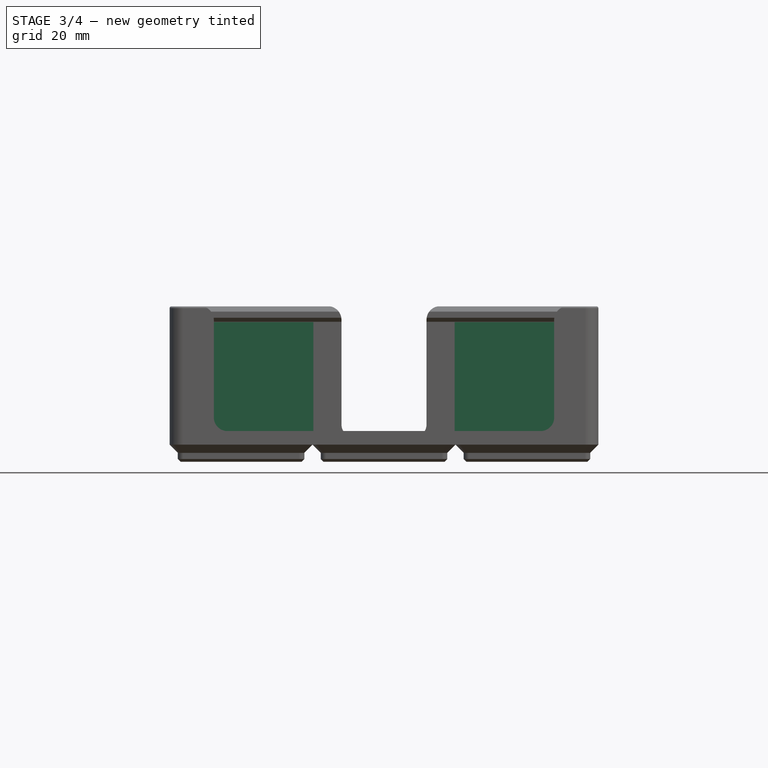
[diagram: stage 3 of 4 — front view after this stage's code; geometry added in this stage tinted green]
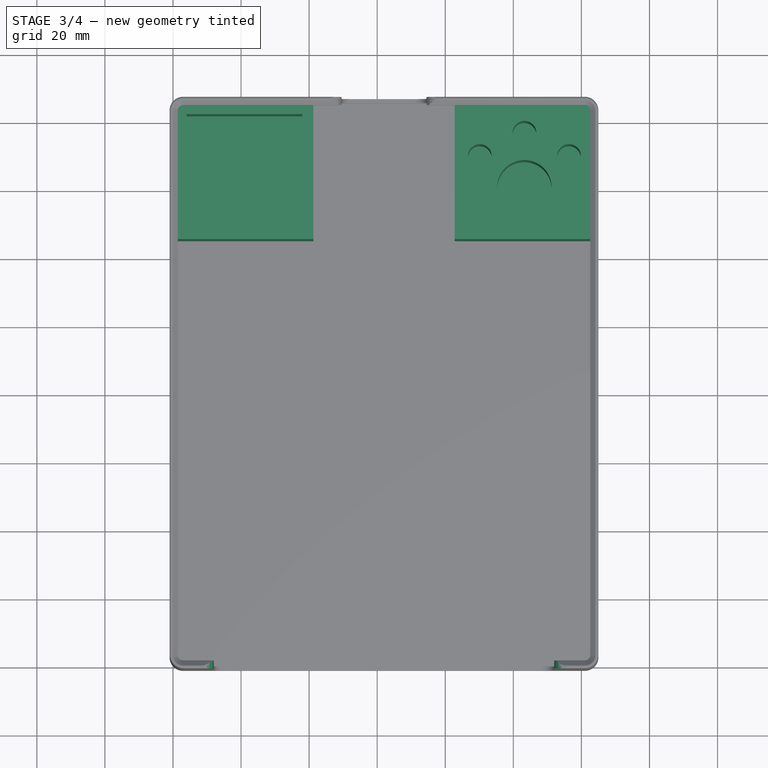
[diagram: stage 3 of 4 — top view after this stage's code; geometry added in this stage tinted green]
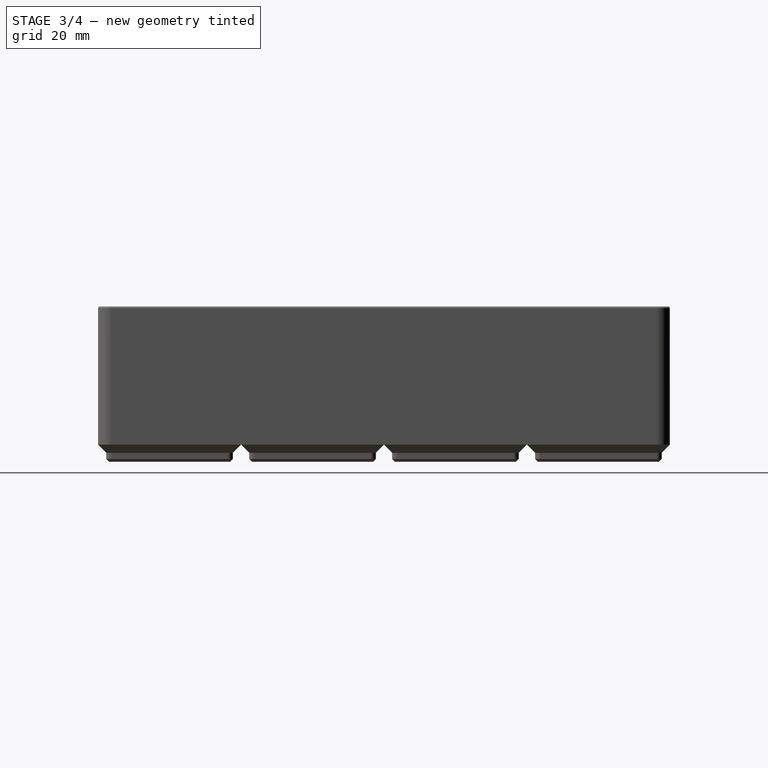
[diagram: stage 3 of 4 — right view after this stage's code; geometry added in this stage tinted green]
FEATURE [Sketcher::SketchObject] Sketch019  label="Front Cutout Sketch"
  FullyConstrained = true
  MapMode = 5
  Placement = pos=(0,-21,0) rot=(1,0,0;1.5708rad)
  Support = -> [Pocket001]
  expr: Constraints[6] = Spreadsheet001.pinePower_frontCutout_width
  expr: Constraints[7] = <<Params>>.pinePower_frontCutout_height
  expr: Constraints[20] = <<Params>>.slotsHigh * <<Params>>.slotHeightDimension
  expr: Constraints[19] = <<Params>>.nestingDepth + <<Params>>.deckHeight
  expr: Constraints[8] = <<Params>>.nestingDepth + <<Params>>.deckHeight + 3mm
  expr: Constraints[17] = <<Params>>.unitWidth
  expr: Constraints[18] = <<Params>>.slotDimension / 2
  sketch-geometry (24):
    g0: LineSegment StartX=-8 StartY=45.7 StartZ=0 EndX=92 EndY=45.7 EndZ=0
    g1: LineSegment StartX=92 StartY=41.7 StartZ=0 EndX=92 EndY=13 EndZ=0
    g2: LineSegment StartX=88 StartY=9 StartZ=0 EndX=-4 EndY=9 EndZ=0
    g3: LineSegment StartX=-8 StartY=13 StartZ=0 EndX=-8 EndY=41.7 EndZ=0
    g4: LineSegment StartX=-21 StartY=48 StartZ=0 EndX=105 EndY=48 EndZ=0
    g5: LineSegment StartX=105 StartY=48 StartZ=0 EndX=105 EndY=6 EndZ=0
    g6: LineSegment StartX=105 StartY=6 StartZ=0 EndX=-21 EndY=6 EndZ=0
    g7: LineSegment StartX=-21 StartY=6 StartZ=0 EndX=-21 EndY=48 EndZ=0
    g8: GeomPoint X=-8 Y=48 Z=0
    g9: GeomPoint X=92 Y=48 Z=0
    g10: LineSegment StartX=-21 StartY=48 StartZ=0 EndX=-8 EndY=48 EndZ=0
    g11: LineSegment StartX=92 StartY=48 StartZ=0 EndX=105 EndY=48 EndZ=0
    g12: ArcOfCircle CenterX=-4 CenterY=13 CenterZ=0 NormalX=0 NormalY=0 NormalZ=1 AngleXU=0 Radius=4 StartAngle=3.14159 EndAngle=4.71239
    g13: GeomPoint X=-8 Y=9 Z=0
    g14: ArcOfCircle CenterX=88 CenterY=13 CenterZ=0 NormalX=0 NormalY=0 NormalZ=1 AngleXU=0 Radius=4 StartAngle=4.71239 EndAngle=6.28319
    g15: GeomPoint X=92 Y=9 Z=0
    g16: LineSegment StartX=-8 StartY=48 StartZ=0 EndX=-8 EndY=13 EndZ=0
    g17: GeomPoint X=-8 Y=45.7 Z=0
    g18: ArcOfCircle CenterX=96 CenterY=41.7 CenterZ=0 NormalX=0 NormalY=0 NormalZ=1 AngleXU=0 Radius=4 StartAngle=1.5708 EndAngle=3.14159
    g19: GeomPoint X=92 Y=45.7 Z=0
    g20: LineSegment StartX=96 StartY=45.7 StartZ=0 EndX=92 EndY=45.7 EndZ=0
    g21: ArcOfCircle CenterX=-12 CenterY=41.7 CenterZ=0 NormalX=0 NormalY=0 NormalZ=1 AngleXU=0 Radius=4 StartAngle=-9e-16 EndAngle=1.5708
    g22: GeomPoint X=-8 Y=45.7 Z=0
    g23: LineSegment StartX=-12 StartY=45.7 StartZ=0 EndX=-8 EndY=45.7 EndZ=0
  constraints (57):
    c: Coincident(g0,g19)
    c: Coincident(g17,g0)
    c: Horizontal(g0)
    c: Horizontal(g2)
    c: Vertical(g1)
    c: Vertical(g3)
    c: DistanceX(g0,g0) = 100
    c: DistanceY(g13,g17) = 36.7
    c: DistanceY(g-1,g13) = 9
    c: Coincident(g4,g5)
    c: Coincident(g5,g6)
    c: Coincident(g6,g7)
    c: Coincident(g7,g4)
    c: Horizontal(g4)
    c: Horizontal(g6)
    c: Vertical(g5)
    c: Vertical(g7)
    c: DistanceX(g6,g6) = 126
    c: DistanceX(g6,g-1) = 21
    c: DistanceY(g-1,g6) = 6
    c: DistanceY(g7,g7) = 42
    c: PointOnObject(g8,g3)
    c: PointOnObject(g8,g4)
    c: PointOnObject(g9,g1)
    c: PointOnObject(g9,g4)
    c: Coincident(g10,g4)
    c: Coincident(g10,g8)
    c: Coincident(g11,g9)
    c: Coincident(g11,g4)
    c: Equal(g10,g11)
    c: PointOnObject(g13,g3)
    c: PointOnObject(g13,g2)
    c: Tangent(g3,g12) = 1.5708
    c: Tangent(g2,g12) = 1.5708
    c: PointOnObject(g15,g2)
    c: PointOnObject(g15,g1)
    c: Tangent(g2,g14) = 1.5708
    c: Tangent(g1,g14) = 1.5708
    c: Equal(g14,g12)
    c: Radius(g12) = 4
    c: Coincident(g16,g8)
    c: Coincident(g16,g3)
    c: PointOnObject(g19,g1)
    c: Tangent(g1,g18) = -1.5708
    c: Coincident(g20,g18)
    c: Coincident(g20,g0)
    c: Horizontal(g20)
    c: Tangent(g20,g18)
    c: Coincident(g22,g0)
    c: Equal(g18,g14)
    c: PointOnObject(g22,g3)
    c: Tangent(g3,g21) = -1.5708
    c: Equal(g21,g12)
    c: Coincident(g23,g21)
    c: Coincident(g23,g0)
    c: Horizontal(g23)
    c: Tangent(g23,g21)
FEATURE [PartDesign::Pocket] Pocket002  label="Front Cutout"
  BaseFeature = -> Pocket001
  Length = 5
  Length2 = 100
  Profile = -> Sketch019
  Type = 0
FEATURE [Sketcher::SketchObject] Sketch020
  FullyConstrained = true
  MapMode = 5
  Placement = pos=(0,0,6) rot=(0,0,1;0rad)
  expr: Constraints[18] = <<Params>>.slotDimension - <<Params>>.nestingClearance
  expr: Constraints[14] = <<Params>>.slotDimension * <<Params>>.SlotsDeep - <<Params>>.slotDimension / 2
  expr: Constraints[15] = <<Params>>.slotDimension * <<Params>>.slotsWide - <<Params>>.slotDimension / 2 - <<Params>>.nestingClearance
  expr: Constraints[13] = <<Params>>.slotDimension / 2 - <<Params>>.nestingClearance
  expr: Constraints[16] = <<Params>>.slotDimension
  expr: Constraints[29] = <<Params>>.cornerFillet
  sketch-geometry (12):
    g0: LineSegment StartX=-16.75 StartY=147 StartZ=0 EndX=21.25 EndY=147 EndZ=0
    g1: LineSegment StartX=21.25 StartY=147 StartZ=0 EndX=21.25 EndY=105.25 EndZ=0
    g2: LineSegment StartX=21.25 StartY=105.25 StartZ=0 EndX=-20.75 EndY=105.25 EndZ=0
    g3: LineSegment StartX=-20.75 StartY=105.25 StartZ=0 EndX=-20.75 EndY=143 EndZ=0
    g4: LineSegment StartX=62.75 StartY=147 StartZ=0 EndX=100.75 EndY=147 EndZ=0
    g5: LineSegment StartX=104.75 StartY=143 StartZ=0 EndX=104.75 EndY=105.25 EndZ=0
    g6: LineSegment StartX=104.75 StartY=105.25 StartZ=0 EndX=62.75 EndY=105.25 EndZ=0
    g7: LineSegment StartX=62.75 StartY=105.25 StartZ=0 EndX=62.75 EndY=147 EndZ=0
    g8: ArcOfCircle CenterX=-16.75 CenterY=143 CenterZ=0 NormalX=0 NormalY=0 NormalZ=1 AngleXU=0 Radius=4 StartAngle=1.5708 EndAngle=3.14159
    g9: GeomPoint X=-20.75 Y=147 Z=0
    g10: ArcOfCircle CenterX=100.75 CenterY=143 CenterZ=0 NormalX=0 NormalY=0 NormalZ=1 AngleXU=0 Radius=4 StartAngle=-1.8e-15 EndAngle=1.5708
    g11: GeomPoint X=104.75 Y=147 Z=0
  constraints (32):
    c: Coincident(g0,g1)
    c: Coincident(g1,g2)
    c: Coincident(g2,g3)
    c: Horizontal(g0)
    c: Horizontal(g2)
    c: Vertical(g3)
    c: Coincident(g5,g6)
    c: Coincident(g6,g7)
    c: Coincident(g7,g4)
    c: Horizontal(g4)
    c: Horizontal(g6)
    c: Vertical(g5)
    c: Vertical(g7)
    c: DistanceX(g2,g-1) = 20.75
    c: DistanceY(g-1,g9) = 147
    c: DistanceX(g-1,g5) = 104.75
    c: DistanceX(g6,g6) = 42
    c: Equal(g2,g6)
    c: DistanceY(g1,g1) = 41.75
    c: DistanceY(g0,g4) = 0
    c: PointOnObject(g9,g3)
    c: PointOnObject(g9,g0)
    c: Tangent(g3,g8) = 1.5708
    c: Tangent(g0,g8) = 1.5708
    c: PointOnObject(g11,g5)
    c: PointOnObject(g11,g4)
    c: Tangent(g5,g10) = 1.5708
    c: Tangent(g4,g10) = 1.5708
    c: Equal(g8,g10)
    c: Radius(g8) = 4
    c: Equal(g0,g4)
    c: Equal(g7,g1)
FEATURE [PartDesign::Pad] Pad005
  BaseFeature = -> Pocket002
  Direction = (1,1,1)
  Length = 35
  Length2 = 100
  Profile = -> Sketch020
  Type = 0
  expr: Length = <<Params>>.slotHeightDimension * <<Params>>.slotsHigh - <<Params>>.nestingDepth - 2mm
FEATURE [Sketcher::SketchObject] Sketch021
  FullyConstrained = true
  MapMode = 5
  Placement = pos=(0,0,43) rot=(0,0,1;0rad)
  expr: Constraints[18] = <<Params>>.slotDimension * (<<Params>>.slotsWide - 1) - 8.75mm
  expr: Constraints[19] = <<Params>>.slotDimension * (<<Params>>.SlotsDeep - 1.5) + 4mm
  expr: Constraints[52] = <<Params>>.slotDimension / 2 - 5mm
  sketch-geometry (24):
    g0: LineSegment StartX=75.25 StartY=109 StartZ=0 EndX=91.25 EndY=109 EndZ=0
    g1: LineSegment StartX=75.25 StartY=109 StartZ=0 EndX=75.25 EndY=120.5 EndZ=0
    g2: LineSegment StartX=91.25 StartY=109 StartZ=0 EndX=91.25 EndY=120.5 EndZ=0
    g3: LineSegment StartX=75.25 StartY=120.5 StartZ=0 EndX=91.25 EndY=120.5 EndZ=0
    g4: GeomPoint X=83.25 Y=120.5 Z=0
    g5: LineSegment StartX=75.25 StartY=120.5 StartZ=0 EndX=83.25 EndY=120.5 EndZ=0
    g6: LineSegment StartX=83.25 StartY=120.5 StartZ=0 EndX=91.25 EndY=120.5 EndZ=0
    g7: ArcOfCircle CenterX=83.25 CenterY=120.5 CenterZ=0 NormalX=0 NormalY=0 NormalZ=1 AngleXU=0 Radius=8 StartAngle=-1.8e-15 EndAngle=3.14159
    g8: Circle CenterX=70.1436 CenterY=129.677 CenterZ=0 NormalX=0 NormalY=0 NormalZ=1 AngleXU=0 Radius=6.5
    g9: Circle CenterX=83.25 CenterY=136.5 CenterZ=0 NormalX=0 NormalY=0 NormalZ=1 AngleXU=0 Radius=6.5
    g10: Circle CenterX=96.3564 CenterY=129.677 CenterZ=0 NormalX=0 NormalY=0 NormalZ=1 AngleXU=0 Radius=6.5
    g11: Circle CenterX=83.25 CenterY=120.5 CenterZ=0 NormalX=0 NormalY=0 NormalZ=1 AngleXU=0 Radius=16
    g12: LineSegment StartX=70.1436 StartY=129.677 StartZ=0 EndX=83.25 EndY=120.5 EndZ=0
    g13: LineSegment StartX=83.25 StartY=120.5 StartZ=0 EndX=83.25 EndY=136.5 EndZ=0
    g14: LineSegment StartX=83.25 StartY=120.5 StartZ=0 EndX=96.3564 EndY=129.677 EndZ=0
    g15: Circle CenterX=70.1436 CenterY=129.677 CenterZ=0 NormalX=0 NormalY=0 NormalZ=1 AngleXU=0 Radius=3.5
    g16: Circle CenterX=83.25 CenterY=136.5 CenterZ=0 NormalX=0 NormalY=0 NormalZ=1 AngleXU=0 Radius=3.5
    g17: Circle CenterX=96.3564 CenterY=129.677 CenterZ=0 NormalX=0 NormalY=0 NormalZ=1 AngleXU=0 Radius=3.5
    g18: LineSegment StartX=-16 StartY=142 StartZ=0 EndX=18 EndY=142 EndZ=0
    g19: LineSegment StartX=18 StartY=142 StartZ=0 EndX=18 EndY=108 EndZ=0
    g20: LineSegment StartX=18 StartY=108 StartZ=0 EndX=-16 EndY=108 EndZ=0
    g21: LineSegment StartX=-16 StartY=108 StartZ=0 EndX=-16 EndY=142 EndZ=0
    g22: GeomPoint X=83.25 Y=128.5 Z=0
    g23: GeomPoint X=83.25 Y=109 Z=0
  constraints (61):
    c: Horizontal(g0)
    c: Coincident(g1,g0)
    c: Vertical(g1)
    c: Coincident(g2,g0)
    c: Vertical(g2)
    c: Equal(g1,g0)
    c: Equal(g0,g2)
    c: DistanceX(g0,g0) = 16
    c: Coincident(g3,g1)
    c: Coincident(g3,g2)
    c: PointOnObject(g4,g3)
    c: Coincident(g5,g1)
    c: Coincident(g5,g4)
    c: Coincident(g6,g5)
    c: Coincident(g6,g2)
    c: Coincident(g7,g5)
    c: Coincident(g7,g1)
    c: Coincident(g7,g2)
    c: DistanceX(g-1,g0) = 75.25
    c: DistanceY(g-1,g0) = 109
    c: Equal(g8,g9)
    c: Equal(g9,g10)
    c: Radius(g8) = 6.5
    c: Coincident(g11,g7)
    c: Radius(g11) = 16
    c: PointOnObject(g8,g11)
    c: PointOnObject(g9,g11)
    c: PointOnObject(g10,g11)
    c: Coincident(g12,g8)
    c: Coincident(g12,g7)
    c: Coincident(g13,g7)
    c: Coincident(g13,g9)
    c: Coincident(g14,g7)
    c: Coincident(g14,g10)
    c: Angle(g13,g12) = 0.959931
    c: Vertical(g13)
    c: Coincident(g15,g8)
    c: Coincident(g16,g9)
    c: Coincident(g17,g10)
    c: Equal(g17,g16)
    c: Equal(g16,g15)
    c: Radius(g15) = 3.5
    c: Coincident(g18,g19)
    c: Coincident(g19,g20)
    c: Coincident(g20,g21)
    c: Coincident(g21,g18)
    c: Horizontal(g18)
    c: Vertical(g19)
    c: Vertical(g21)
    c: Equal(g21,g18)
    c: DistanceX(g20,g20) = 34
    c: Tangent(g20,g0)
    c: DistanceX(g20,g-1) = 16
    c: Angle(g14,g13) = 0.959931
    c: Equal(g1,g2)
    c: DistanceY(g-1,g20) = 108
    c: Horizontal(g20)
    c: PointOnObject(g22,g7)
    c: PointOnObject(g22,g13)
    c: Symmetric(g0,g0,g23)
    c: DistanceY(g23,g22) = 19.5
FEATURE [PartDesign::Pocket] Pocket003
  BaseFeature = -> Pad005
  Length = 40
  Length2 = 100
  Profile = -> Sketch021
  Type = 0
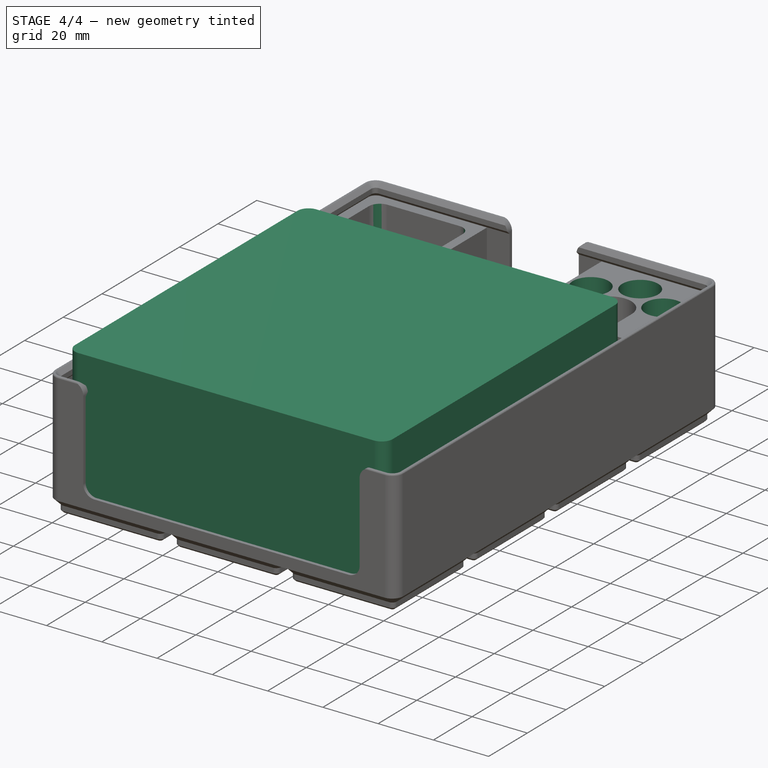
[diagram: stage 4 of 4 — iso view after this stage's code; geometry added in this stage tinted green]
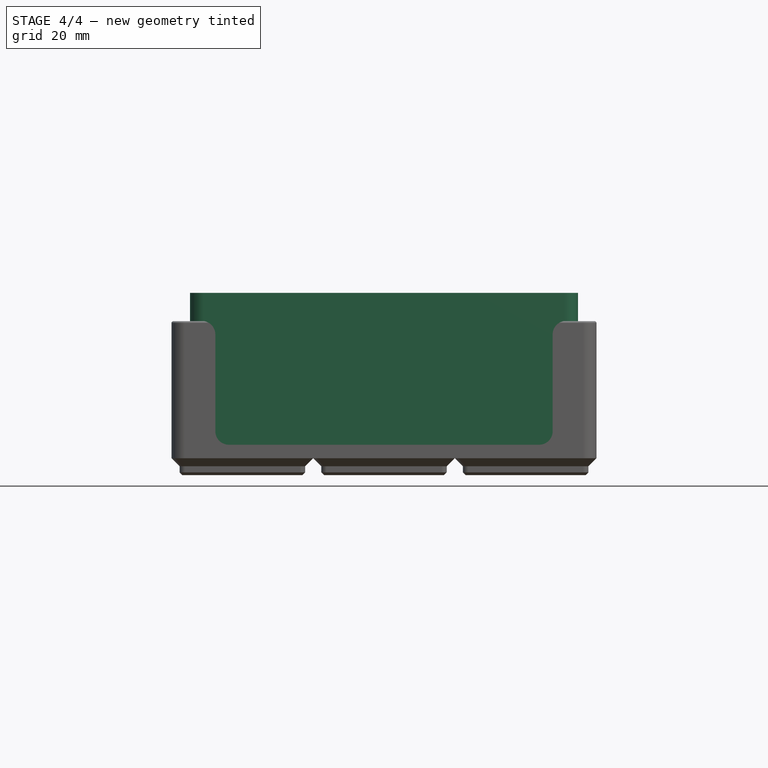
[diagram: stage 4 of 4 — front view after this stage's code; geometry added in this stage tinted green]
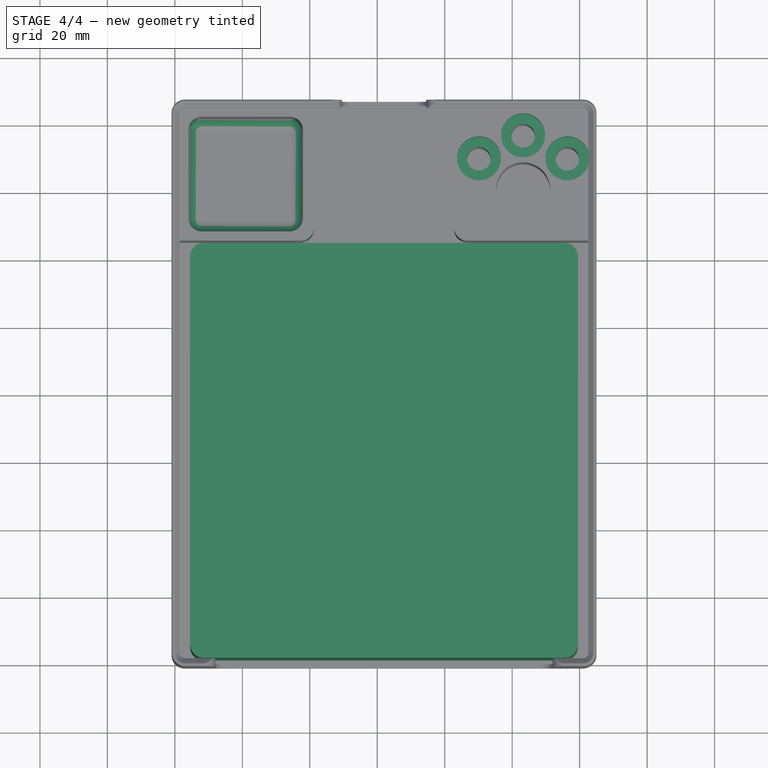
[diagram: stage 4 of 4 — top view after this stage's code; geometry added in this stage tinted green]
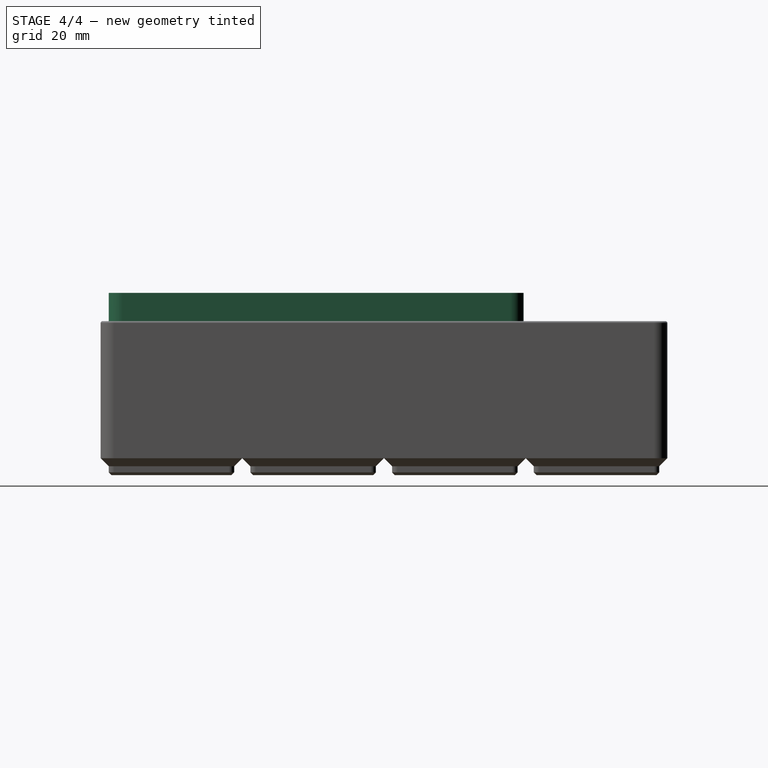
[diagram: stage 4 of 4 — right view after this stage's code; geometry added in this stage tinted green]
FEATURE [Sketcher::SketchObject] Sketch016  label="Pine Power Unit"
  AttachmentOffset = pos=(5.5,2.4,6) rot=(0,0,1;0rad)
  FullyConstrained = true
  MapMode = 5
  Placement = pos=(5.5,2.4,6) rot=(0,0,1;0rad)
  Support = -> [XY_Plane003]
  expr: Constraints[22] = <<Params>>.pinePowerCornerRadius
  expr: Constraints[27] = <<Params>>.slotDimension / 2
  expr: Constraints[5] = <<Params>>.pinePowerDepth
  expr: Constraints[4] = <<Params>>.pinePowerWidth
  expr: Constraints[26] = <<Params>>.slotDimension / 2
  expr: .AttachmentOffset.Base.z = <<Params>>.nestingDepth + <<Params>>.deckHeight
  expr: .AttachmentOffset.Base.x = (<<Params>>.slotsWide * <<Params>>.slotDimension - <<Params>>.pinePowerWidth) / 2
  expr: .AttachmentOffset.Base.y = <<Params>>.nestingRimWidth
  sketch-geometry (12):
    g0: LineSegment StartX=-17 StartY=102 StartZ=0 EndX=90 EndY=102 EndZ=0
    g1: LineSegment StartX=94 StartY=98 StartZ=0 EndX=94 EndY=-17 EndZ=0
    g2: LineSegment StartX=90 StartY=-21 StartZ=0 EndX=-17 EndY=-21 EndZ=0
    g3: LineSegment StartX=-21 StartY=-17 StartZ=0 EndX=-21 EndY=98 EndZ=0
    g4: ArcOfCircle CenterX=-17 CenterY=98 CenterZ=0 NormalX=0 NormalY=0 NormalZ=1 AngleXU=0 Radius=4 StartAngle=1.5708 EndAngle=3.14159
    g5: GeomPoint X=-21 Y=102 Z=0
    g6: ArcOfCircle CenterX=90 CenterY=98 CenterZ=0 NormalX=0 NormalY=0 NormalZ=1 AngleXU=0 Radius=4 StartAngle=-9e-16 EndAngle=1.5708
    g7: GeomPoint X=94 Y=102 Z=0
    g8: ArcOfCircle CenterX=90 CenterY=-17 CenterZ=0 NormalX=0 NormalY=0 NormalZ=1 AngleXU=0 Radius=4 StartAngle=4.71239 EndAngle=6.28319
    g9: GeomPoint X=94 Y=-21 Z=0
    g10: ArcOfCircle CenterX=-17 CenterY=-17 CenterZ=0 NormalX=0 NormalY=0 NormalZ=1 AngleXU=0 Radius=4 StartAngle=3.14159 EndAngle=4.71239
    g11: GeomPoint X=-21 Y=-21 Z=0
  constraints (28):
    c: Horizontal(g0)
    c: Horizontal(g2)
    c: Vertical(g1)
    c: Vertical(g3)
    c: DistanceX(g11,g9) = 115
    c: DistanceY(g11,g5) = 123
    c: PointOnObject(g5,g3)
    c: PointOnObject(g5,g0)
    c: Tangent(g3,g4) = 1.5708
    c: Tangent(g0,g4) = 1.5708
    c: PointOnObject(g7,g0)
    c: PointOnObject(g7,g1)
    c: Tangent(g0,g6) = 1.5708
    c: Tangent(g1,g6) = 1.5708
    c: PointOnObject(g9,g1)
    c: PointOnObject(g9,g2)
    c: Tangent(g1,g8) = 1.5708
    c: Tangent(g2,g8) = 1.5708
    c: PointOnObject(g11,g2)
    c: PointOnObject(g11,g3)
    c: Tangent(g2,g10) = 1.5708
    c: Tangent(g3,g10) = 1.5708
    c: Radius(g4) = 4
    c: Equal(g4,g6)
    c: Equal(g6,g8)
    c: Equal(g8,g10)
    c: DistanceX(g11,g-1) = 21
    c: DistanceY(g11,g-1) = 21
FEATURE [PartDesign::Pad] Pad004
  Direction = (1,1,1)
  Length = 48
  Length2 = 100
  Profile = -> Sketch016
  Type = 0
  expr: Length = <<Params>>.pinePowerHeight
FEATURE [Sketcher::SketchObject] Sketch022
  FullyConstrained = true
  MapMode = 5
  Placement = pos=(0,0,43) rot=(0,0,1;0rad)
  expr: Constraints[7] = Sketch021.Constraints[7]
  expr: Constraints[42] = Sketch021.Constraints[41]
  expr: Constraints[18] = Sketch021.Constraints[18]
  expr: Constraints[34] = Sketch021.Constraints[34]
  expr: Constraints[19] = Sketch021.Constraints[19]
  expr: Constraints[22] = Sketch021.Constraints[22]
  expr: Constraints[24] = Sketch021.Constraints[24]
  expr: Constraints[35] = Sketch021.Constraints[34]
  expr: Constraints[51] = Sketch021.Constraints[50]
  expr: Constraints[53] = Sketch021.Constraints[52]
  sketch-geometry (24):
    g0: LineSegment StartX=75.25 StartY=109 StartZ=0 EndX=91.25 EndY=109 EndZ=0
    g1: LineSegment StartX=75.25 StartY=109 StartZ=0 EndX=75.25 EndY=120.5 EndZ=0
    g2: LineSegment StartX=91.25 StartY=109 StartZ=0 EndX=91.25 EndY=120.5 EndZ=0
    g3: LineSegment StartX=75.25 StartY=120.5 StartZ=0 EndX=91.25 EndY=120.5 EndZ=0
    g4: GeomPoint X=83.25 Y=120.5 Z=0
    g5: LineSegment StartX=75.25 StartY=120.5 StartZ=0 EndX=83.25 EndY=120.5 EndZ=0
    g6: LineSegment StartX=83.25 StartY=120.5 StartZ=0 EndX=91.25 EndY=120.5 EndZ=0
    g7: ArcOfCircle CenterX=83.25 CenterY=120.5 CenterZ=0 NormalX=0 NormalY=0 NormalZ=1 AngleXU=0 Radius=8 StartAngle=-2.7e-15 EndAngle=3.14159
    g8: Circle CenterX=70.1436 CenterY=129.677 CenterZ=0 NormalX=0 NormalY=0 NormalZ=1 AngleXU=0 Radius=6.5
    g9: Circle CenterX=83.25 CenterY=136.5 CenterZ=0 NormalX=0 NormalY=0 NormalZ=1 AngleXU=0 Radius=6.5
    g10: Circle CenterX=96.3564 CenterY=129.677 CenterZ=0 NormalX=0 NormalY=0 NormalZ=1 AngleXU=0 Radius=6.5
    g11: Circle CenterX=83.25 CenterY=120.5 CenterZ=0 NormalX=0 NormalY=0 NormalZ=1 AngleXU=0 Radius=16
    g12: LineSegment StartX=70.1436 StartY=129.677 StartZ=0 EndX=83.25 EndY=120.5 EndZ=0
    g13: LineSegment StartX=83.25 StartY=120.5 StartZ=0 EndX=83.25 EndY=136.5 EndZ=0
    g14: LineSegment StartX=83.25 StartY=120.5 StartZ=0 EndX=96.3564 EndY=129.677 EndZ=0
    g15: Circle CenterX=70.1436 CenterY=129.677 CenterZ=0 NormalX=0 NormalY=0 NormalZ=1 AngleXU=0 Radius=3.5
    g16: Circle CenterX=83.25 CenterY=136.5 CenterZ=0 NormalX=0 NormalY=0 NormalZ=1 AngleXU=0 Radius=3.5
    g17: Circle CenterX=96.3564 CenterY=129.677 CenterZ=0 NormalX=0 NormalY=0 NormalZ=1 AngleXU=0 Radius=3.5
    g18: LineSegment StartX=-16 StartY=143 StartZ=0 EndX=18 EndY=143 EndZ=0
    g19: LineSegment StartX=18 StartY=143 StartZ=0 EndX=18 EndY=109 EndZ=0
    g20: LineSegment StartX=18 StartY=109 StartZ=0 EndX=-16 EndY=109 EndZ=0
    g21: LineSegment StartX=-16 StartY=109 StartZ=0 EndX=-16 EndY=143 EndZ=0
    g22: GeomPoint X=83.25 Y=128.5 Z=0
    g23: GeomPoint X=83.25 Y=109 Z=0
  constraints (59):
    c: Horizontal(g0)
    c: Coincident(g1,g0)
    c: Vertical(g1)
    c: Coincident(g2,g0)
    c: Vertical(g2)
    c: Equal(g1,g0)
    c: Equal(g0,g2)
    c: DistanceX(g0,g0) = 16
    c: Coincident(g3,g1)
    c: Coincident(g3,g2)
    c: PointOnObject(g4,g3)
    c: Coincident(g5,g1)
    c: Coincident(g5,g4)
    c: Coincident(g6,g5)
    c: Coincident(g6,g2)
    c: Coincident(g7,g5)
    c: Coincident(g7,g1)
    c: Coincident(g7,g2)
    c: DistanceX(g-1,g0) = 75.25
    c: DistanceY(g-1,g0) = 109
    c: Equal(g8,g9)
    c: Equal(g9,g10)
    c: Radius(g8) = 6.5
    c: Coincident(g11,g7)
    c: Radius(g11) = 16
    c: PointOnObject(g8,g11)
    c: PointOnObject(g9,g11)
    c: PointOnObject(g10,g11)
    c: Coincident(g12,g8)
    c: Coincident(g12,g7)
    c: Coincident(g13,g7)
    c: Coincident(g13,g9)
    c: Coincident(g14,g7)
    c: Coincident(g14,g10)
    c: Angle(g14,g13) = 0.959931
    c: Angle(g13,g12) = 0.959931
    c: Vertical(g13)
    c: Coincident(g15,g8)
    c: Coincident(g16,g9)
    c: Coincident(g17,g10)
    c: Equal(g17,g16)
    c: Equal(g16,g15)
    c: Radius(g15) = 3.5
    c: Coincident(g18,g19)
    c: Coincident(g19,g20)
    c: Coincident(g20,g21)
    c: Coincident(g21,g18)
    c: Horizontal(g18)
    c: Vertical(g19)
    c: Vertical(g21)
    c: Equal(g21,g18)
    c: DistanceX(g20,g20) = 34
    c: Tangent(g20,g0)
    c: DistanceX(g20,g-1) = 16
    c: Equal(g1,g2)
    c: PointOnObject(g22,g7)
    c: PointOnObject(g22,g13)
    c: Symmetric(g0,g0,g23)
    c: DistanceY(g23,g22) = 19.5
FEATURE [PartDesign::Pocket] Pocket004
  BaseFeature = -> Pocket003
  Length = 10
  Length2 = 100
  Profile = -> Sketch022
  Type = 0
FEATURE [PartDesign::Fillet] Fillet  label="Compartment Fillet"
  Base = -> Pocket004 [Edge863,Edge862,Edge860,Edge857,Edge858,Edge861,Edge859,Edge856]
  BaseFeature = -> Pocket004
  Radius = 4
  SupportTransform = false
FEATURE [PartDesign::Fillet] Fillet001
  Base = -> Fillet [Edge44,Edge75]
  BaseFeature = -> Fillet
  Radius = 4
  SupportTransform = false
FEATURE [PartDesign::Body] Body
  Group = -> [Sketch007,Sketch008,Sketch009,Pad,Pad001,SubtractivePipe,Pocket,Sketch,MultiTransform,LinearPattern,LinearPattern001,Sketch010,Sketch017,AdditivePipe,Sketch018,Pocket001,Sketch019,Pocket002,Sketch020,Pad005,Sketch021,Pocket003,Sketch022,Pocket004,Fillet,Fillet001]
  Origin = -> Origin
  Tip = -> Fillet001
FEATURE [App::Part] Part001
  Group = -> [Body]
  Origin = -> Origin002
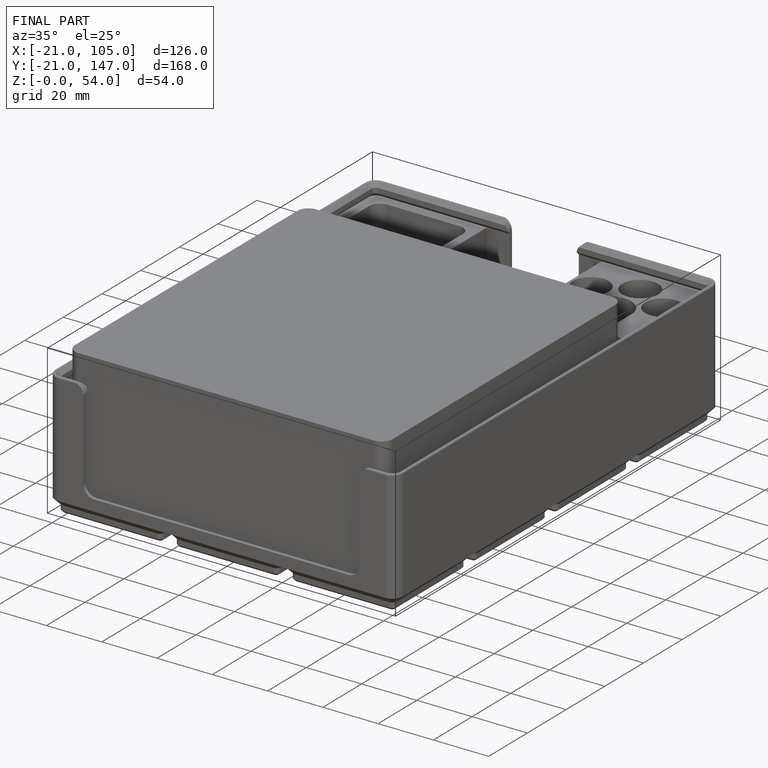
[diagram: finished part — iso view with bounding-box wireframe]
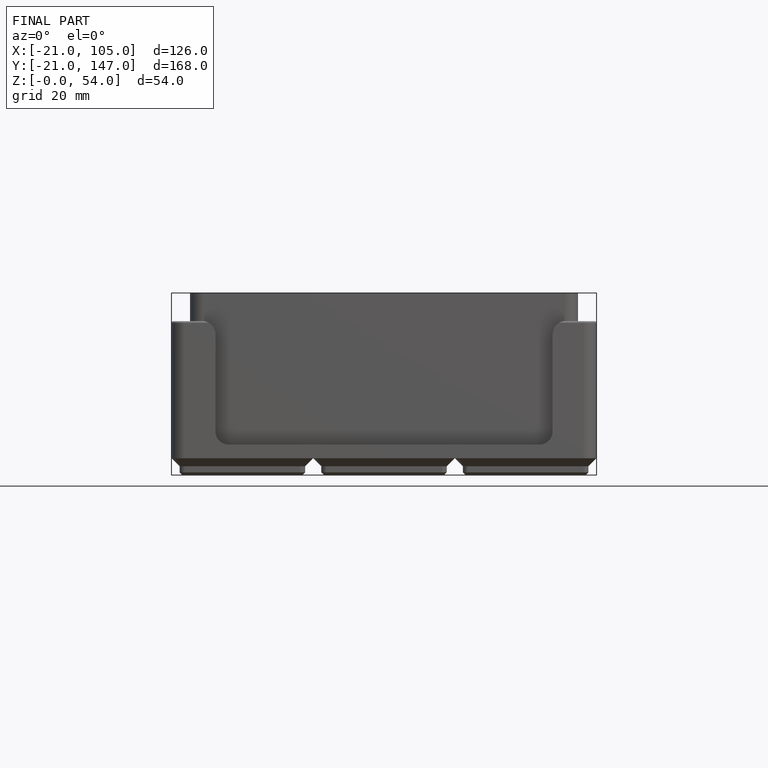
[diagram: finished part — front view with bounding-box wireframe]
